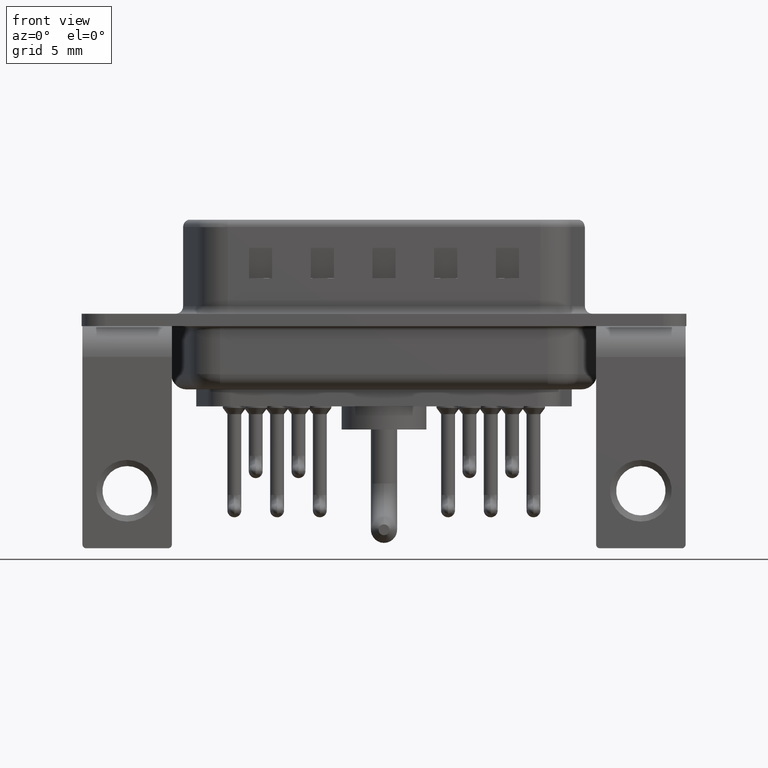
[diagram: clean part render]
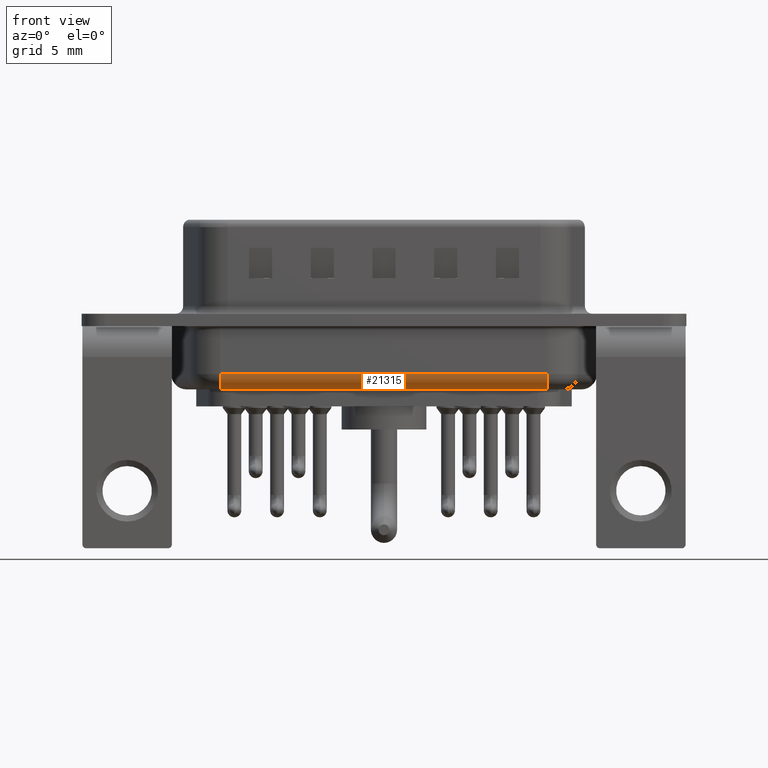
[diagram: same view with one face highlighted and labeled with its STEP entity id]
A machine part, front view. The second image highlights one B-rep face of the part: STEP entity #21315.
In plain terms, the highlighted cylindrical surface (edge-blend (fillet) strip) has radius 1 mm, axis along (-1, 0, 0).
Its self-contained STEP definition (entity closure, byte-faithful):
#3173 = CIRCLE ( 'NONE', #14858, 1.000000000000000000 ) ;
#3671 = CIRCLE ( 'NONE', #13873, 1.000000000000000000 ) ;
#4753 = ORIENTED_EDGE ( 'NONE', *, *, #13868, .F. ) ;
#4834 = DIRECTION ( 'NONE',  ( 0.0000000000000000000, 0.0000000000000000000, 1.000000000000000000 ) ) ;
#5356 = LINE ( 'NONE', #21623, #15908 ) ;
#6237 = LINE ( 'NONE', #13445, #12158 ) ;
#7243 = EDGE_CURVE ( 'NONE', #14560, #18947, #3671, .T. ) ;
#7271 = ORIENTED_EDGE ( 'NONE', *, *, #9241, .F. ) ;
#7495 = FACE_OUTER_BOUND ( 'NONE', #9374, .T. ) ;
#7958 = CARTESIAN_POINT ( 'NONE',  ( 6.031390770746665630, -4.350000000000005862, -4.500000000000000000 ) ) ;
#8331 = CARTESIAN_POINT ( 'NONE',  ( 6.031390770746665630, -5.350000000000005862, -3.499999999999999556 ) ) ;
#9128 = VERTEX_POINT ( 'NONE', #8331 ) ;
#9241 = EDGE_CURVE ( 'NONE', #9128, #18947, #5356, .T. ) ;
#9374 = EDGE_LOOP ( 'NONE', ( #14105, #7271, #4753, #13466 ) ) ;
#9499 = DIRECTION ( 'NONE',  ( -1.000000000000000000, 0.0000000000000000000, 0.0000000000000000000 ) ) ;
#10909 = DIRECTION ( 'NONE',  ( 0.0000000000000000000, 0.0000000000000000000, 1.000000000000000000 ) ) ;
#11280 = CARTESIAN_POINT ( 'NONE',  ( 6.031390770746665630, -4.350000000000005862, -3.499999999999999556 ) ) ;
#11783 = EDGE_CURVE ( 'NONE', #14560, #17126, #6237, .T. ) ;
#12158 = VECTOR ( 'NONE', #15340, 1000.000000000000000 ) ;
#13445 = CARTESIAN_POINT ( 'NONE',  ( 6.031390770746665630, -4.350000000000005862, -4.500000000000000000 ) ) ;
#13466 = ORIENTED_EDGE ( 'NONE', *, *, #11783, .F. ) ;
#13598 = CARTESIAN_POINT ( 'NONE',  ( 27.26860922925332531, -5.350000000000005862, -3.499999999999999556 ) ) ;
#13822 = CARTESIAN_POINT ( 'NONE',  ( 6.031390770746665630, -4.350000000000005862, -3.499999999999999556 ) ) ;
#13868 = EDGE_CURVE ( 'NONE', #17126, #9128, #3173, .T. ) ;
#13873 = AXIS2_PLACEMENT_3D ( 'NONE', #17753, #19614, #10909 ) ;
#14105 = ORIENTED_EDGE ( 'NONE', *, *, #7243, .T. ) ;
#14560 = VERTEX_POINT ( 'NONE', #14952 ) ;
#14797 = DIRECTION ( 'NONE',  ( 0.0000000000000000000, 0.0000000000000000000, 1.000000000000000000 ) ) ;
#14858 = AXIS2_PLACEMENT_3D ( 'NONE', #13822, #20990, #4834 ) ;
#14952 = CARTESIAN_POINT ( 'NONE',  ( 27.26860922925332531, -4.350000000000005862, -4.500000000000000000 ) ) ;
#15340 = DIRECTION ( 'NONE',  ( -1.000000000000000000, 0.0000000000000000000, 0.0000000000000000000 ) ) ;
#15908 = VECTOR ( 'NONE', #17759, 1000.000000000000000 ) ;
#17126 = VERTEX_POINT ( 'NONE', #7958 ) ;
#17753 = CARTESIAN_POINT ( 'NONE',  ( 27.26860922925332531, -4.350000000000005862, -3.499999999999999556 ) ) ;
#17759 = DIRECTION ( 'NONE',  ( 1.000000000000000000, -0.0000000000000000000, -0.0000000000000000000 ) ) ;
#18590 = AXIS2_PLACEMENT_3D ( 'NONE', #11280, #9499, #14797 ) ;
#18947 = VERTEX_POINT ( 'NONE', #13598 ) ;
#19614 = DIRECTION ( 'NONE',  ( -1.000000000000000000, -0.0000000000000000000, -0.0000000000000000000 ) ) ;
#20990 = DIRECTION ( 'NONE',  ( -1.000000000000000000, -0.0000000000000000000, -0.0000000000000000000 ) ) ;
#21315 = ADVANCED_FACE ( 'NONE', ( #7495 ), #21978, .T. ) ;
#21623 = CARTESIAN_POINT ( 'NONE',  ( 6.031390770746665630, -5.350000000000005862, -3.499999999999999556 ) ) ;
#21978 = CYLINDRICAL_SURFACE ( 'NONE', #18590, 1.000000000000000000 ) ;